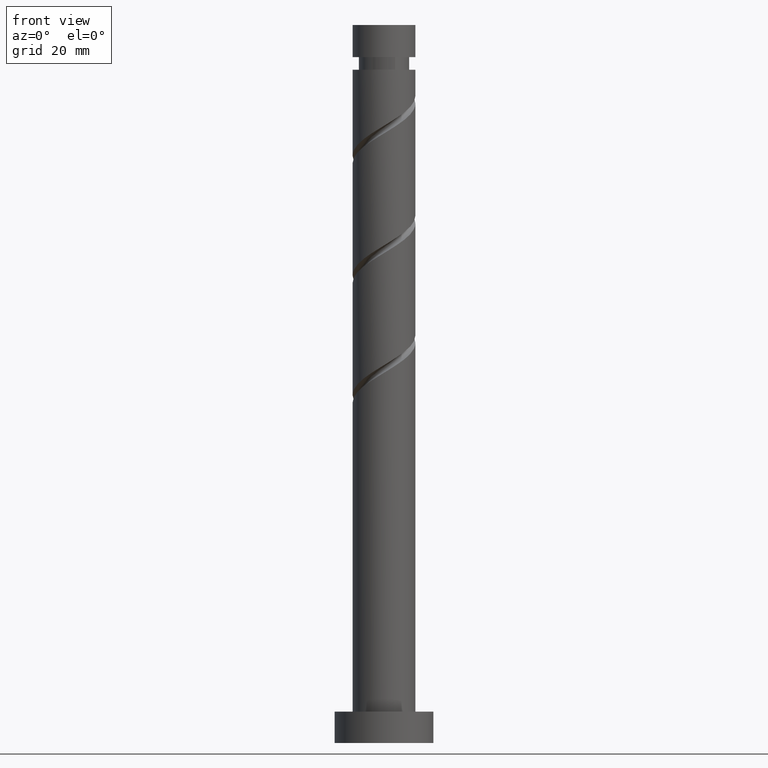
[diagram: clean part render]
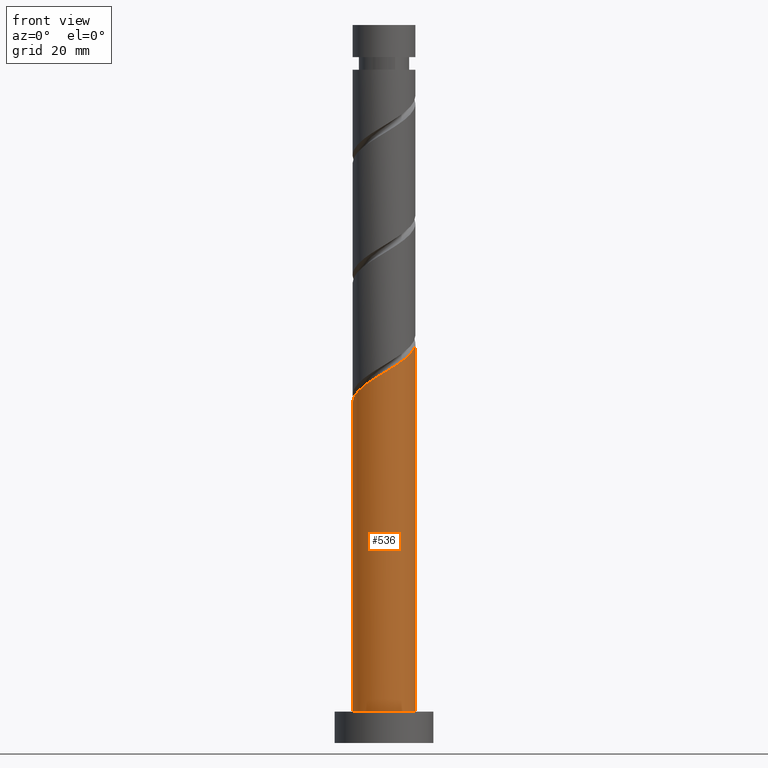
[diagram: same view with one face highlighted and labeled with its STEP entity id]
A machine part, front view. The second image highlights one B-rep face of the part: STEP entity #536.
In plain terms, the highlighted cylindrical surface (edge-blend (fillet) strip) has radius 7 mm, axis along (-0, -0, -1).
Its self-contained STEP definition (entity closure, byte-faithful):
#1 = VERTEX_POINT ( 'NONE', #739 ) ;
#34 = AXIS2_PLACEMENT_3D ( 'NONE', #1110, #1127, #344 ) ;
#65 = DIRECTION ( 'NONE',  ( -0.000000000000000000, -0.000000000000000000, -1.000000000000000000 ) ) ;
#137 = CARTESIAN_POINT ( 'NONE',  ( -6.591933024629119231, -2.355083650065143530, 77.30269891767551371 ) ) ;
#165 = CARTESIAN_POINT ( 'NONE',  ( 6.096651564732192163, -3.439598769951033752, 86.99966861464521628 ) ) ;
#177 = CARTESIAN_POINT ( 'NONE',  ( 7.000000000000010658, -0.8017024916958608305, 88.69455721267600268 ) ) ;
#183 = CARTESIAN_POINT ( 'NONE',  ( 4.159182844377432353, -5.719627239638761296, 85.18148679646334642 ) ) ;
#197 = EDGE_CURVE ( 'NONE', #559, #1, #346, .T. ) ;
#212 = LINE ( 'NONE', #1621, #425 ) ;
#228 = DIRECTION ( 'NONE',  ( -0.000000000000000000, -0.000000000000000000, -1.000000000000000000 ) ) ;
#242 = FACE_OUTER_BOUND ( 'NONE', #348, .T. ) ;
#269 = EDGE_CURVE ( 'NONE', #1573, #559, #707, .T. ) ;
#344 = DIRECTION ( 'NONE',  ( -1.000000000000000000, 0.000000000000000000, 0.000000000000000000 ) ) ;
#346 = CIRCLE ( 'NONE', #745, 7.000000000000000888 ) ;
#348 = EDGE_LOOP ( 'NONE', ( #1081, #1580, #1463, #364 ) ) ;
#364 = ORIENTED_EDGE ( 'NONE', *, *, #197, .T. ) ;
#387 = CARTESIAN_POINT ( 'NONE',  ( 0.4066633151437517579, -7.060280634755080165, 82.75724437222093854 ) ) ;
#407 = CARTESIAN_POINT ( 'NONE',  ( 4.880647382969427461, -5.017896085324388800, 85.78754740252401234 ) ) ;
#415 = VERTEX_POINT ( 'NONE', #1478 ) ;
#425 = VECTOR ( 'NONE', #228, 1000.000000000000000 ) ;
#498 = CARTESIAN_POINT ( 'NONE',  ( -7.000000000000012434, -0.2014286856667623637, 75.96928183703222714 ) ) ;
#532 = CARTESIAN_POINT ( 'NONE',  ( -6.253323115207297889, -3.302860534475442034, 77.90875952373612279 ) ) ;
#536 = ADVANCED_FACE ( 'NONE', ( #242 ), #879, .T. ) ;
#559 = VERTEX_POINT ( 'NONE', #724 ) ;
#609 = EDGE_CURVE ( 'NONE', #415, #1, #212, .T. ) ;
#630 = CARTESIAN_POINT ( 'NONE',  ( -3.474968943302391367, -6.159344813895805792, 80.33300194797853067 ) ) ;
#639 = CARTESIAN_POINT ( 'NONE',  ( -1.598920321740372019, -6.888859956343062585, 81.54512316009972039 ) ) ;
#651 = DIRECTION ( 'NONE',  ( 0.000000000000000000, 0.000000000000000000, 1.000000000000000000 ) ) ;
#666 = CARTESIAN_POINT ( 'NONE',  ( 7.000000000000009770, 4.786182625118863513E-15, 89.18051716564733056 ) ) ;
#707 = LINE ( 'NONE', #828, #1107 ) ;
#724 = CARTESIAN_POINT ( 'NONE',  ( -7.000000000000000888, 0.000000000000000000, 7.000000000000000000 ) ) ;
#734 = CARTESIAN_POINT ( 'NONE',  ( -7.000000000000009770, -5.145146322002778474E-15, 75.84718383231400196 ) ) ;
#739 = CARTESIAN_POINT ( 'NONE',  ( 7.000000000000000888, 8.572527594031474176E-16, 7.000000000000000000 ) ) ;
#745 = AXIS2_PLACEMENT_3D ( 'NONE', #926, #651, #1177 ) ;
#796 = CARTESIAN_POINT ( 'NONE',  ( 6.591191207902958205, -2.563032608892052977, 87.60572922070583957 ) ) ;
#815 = CARTESIAN_POINT ( 'NONE',  ( 6.818741294903309047, -1.582645618317779945, 88.21178982676637759 ) ) ;
#828 = CARTESIAN_POINT ( 'NONE',  ( -7.000000000000000888, 0.000000000000000000, 160.0000000000000000 ) ) ;
#879 = CYLINDRICAL_SURFACE ( 'NONE', #34, 7.000000000000000888 ) ;
#903 = CARTESIAN_POINT ( 'NONE',  ( 1.392982411949269750, -6.860000000000010978, 83.36330497828154762 ) ) ;
#926 = CARTESIAN_POINT ( 'NONE',  ( 0.000000000000000000, 0.000000000000000000, 7.000000000000000000 ) ) ;
#1023 = CARTESIAN_POINT ( 'NONE',  ( -2.536944632521383358, -6.524102385119434189, 80.93906255403911132 ) ) ;
#1034 = CARTESIAN_POINT ( 'NONE',  ( -5.069496247514102549, -4.930836185660775861, 79.12088073585731252 ) ) ;
#1052 = CARTESIAN_POINT ( 'NONE',  ( -5.661409681360700219, -4.116848360068110502, 78.51482012979671765 ) ) ;
#1081 = ORIENTED_EDGE ( 'NONE', *, *, #609, .F. ) ;
#1107 = VECTOR ( 'NONE', #65, 1000.000000000000000 ) ;
#1110 = CARTESIAN_POINT ( 'NONE',  ( 0.000000000000000000, 0.000000000000000000, 160.0000000000000000 ) ) ;
#1127 = DIRECTION ( 'NONE',  ( -0.000000000000000000, -0.000000000000000000, -1.000000000000000000 ) ) ;
#1148 = CARTESIAN_POINT ( 'NONE',  ( -4.272232595408246958, -5.545090499778290827, 79.72694134191792159 ) ) ;
#1163 = CARTESIAN_POINT ( 'NONE',  ( -0.5961285032983101306, -6.974570295549072263, 82.15118376616035789 ) ) ;
#1177 = DIRECTION ( 'NONE',  ( 1.000000000000000000, 0.000000000000000000, 0.000000000000000000 ) ) ;
#1191 = CARTESIAN_POINT ( 'NONE',  ( 3.269242176566109048, -6.189673302441854652, 84.57542619040275156 ) ) ;
#1292 = EDGE_CURVE ( 'NONE', #1573, #415, #1342, .T. ) ;
#1306 = CARTESIAN_POINT ( 'NONE',  ( -6.930542934050940573, -1.407306765654844360, 76.69663831161486200 ) ) ;
#1325 = CARTESIAN_POINT ( 'NONE',  ( 2.379301508754787520, -6.659719365244943567, 83.96936558434215669 ) ) ;
#1342 =( BOUNDED_CURVE ( )  B_SPLINE_CURVE ( 2, ( #1660, #498, #1535, #1306, #137, #532, #1052, #1034, #1148, #630, #1023, #639, #1163, #387, #903, #1325, #1191, #183, #407, #1454, #165, #796, #815, #177, #666 ),
 .UNSPECIFIED., .F., .T. ) 
 B_SPLINE_CURVE_WITH_KNOTS ( ( 3, 2, 2, 2, 2, 2, 2, 2, 2, 2, 2, 2, 3 ),
 ( 0.05452521624175135639, 0.05681818181818176772, 0.06818181818181823228, 0.07954545454545458583, 0.09090909090909093937, 0.1022727272727272929, 0.1136363636363636465, 0.1250000000000000000, 0.1363636363636363535, 0.1477272727272727071, 0.1590909090909090606, 0.1704545454545454142, 0.1795252162417513009 ),
 .UNSPECIFIED. ) 
 CURVE ( )  GEOMETRIC_REPRESENTATION_ITEM ( )  RATIONAL_B_SPLINE_CURVE ( ( 0.9061101570135581262, 0.9072237824201403456, 0.9090909090909178314, 0.8998376744372202918, 0.9090909090909178314, 0.8998376744372202918, 0.9090909090909178314, 0.8998376744372202918, 0.9090909090909178314, 0.8998376744372202918, 0.9090909090909178314, 0.8998376744372202918, 0.9090909090909178314, 0.8998376744372202918, 0.9090909090909178314, 0.8998376744372202918, 0.9090909090909178314, 0.8998376744372202918, 0.9090909090909178314, 0.8998376744372202918, 0.9090909090909178314, 0.8998376744372202918, 0.9090909090909178314, 0.9017048011079977776, 0.9061101570135582373 ) ) 
 REPRESENTATION_ITEM ( '' )  );
#1454 = CARTESIAN_POINT ( 'NONE',  ( 5.602111921561425234, -4.316164931010011863, 86.39360800858457878 ) ) ;
#1463 = ORIENTED_EDGE ( 'NONE', *, *, #269, .T. ) ;
#1478 = CARTESIAN_POINT ( 'NONE',  ( 7.000000000000009770, 4.786182625118863513E-15, 89.18051716564733056 ) ) ;
#1535 = CARTESIAN_POINT ( 'NONE',  ( -6.988417157977300675, -0.4025240689556689455, 76.09057770555428135 ) ) ;
#1573 = VERTEX_POINT ( 'NONE', #734 ) ;
#1580 = ORIENTED_EDGE ( 'NONE', *, *, #1292, .F. ) ;
#1621 = CARTESIAN_POINT ( 'NONE',  ( 7.000000000000000888, 8.572527594031474176E-16, 160.0000000000000000 ) ) ;
#1660 = CARTESIAN_POINT ( 'NONE',  ( -7.000000000000008882, -5.145146322002779263E-15, 75.84718383231400196 ) ) ;